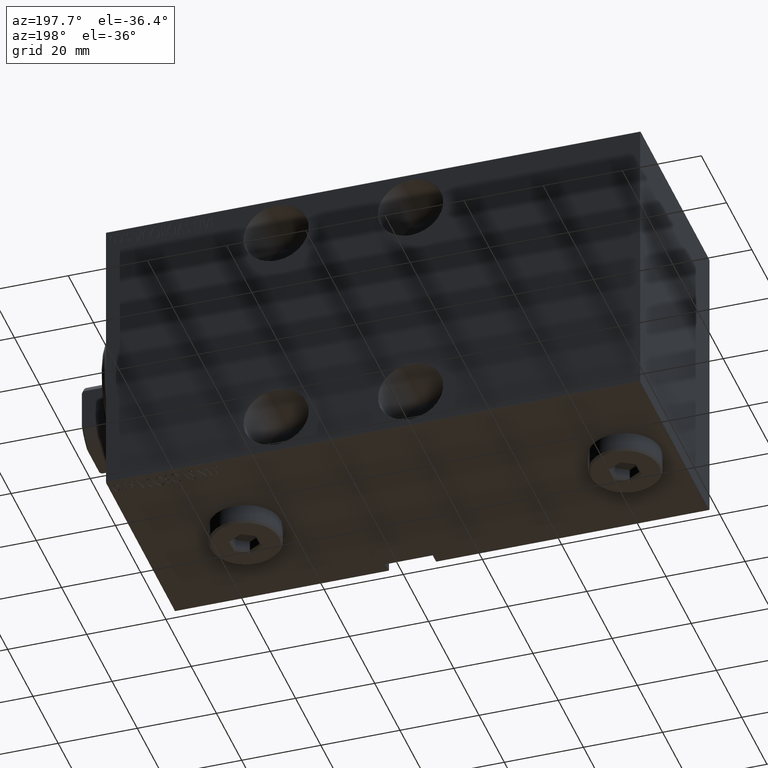
[diagram: clean part render]
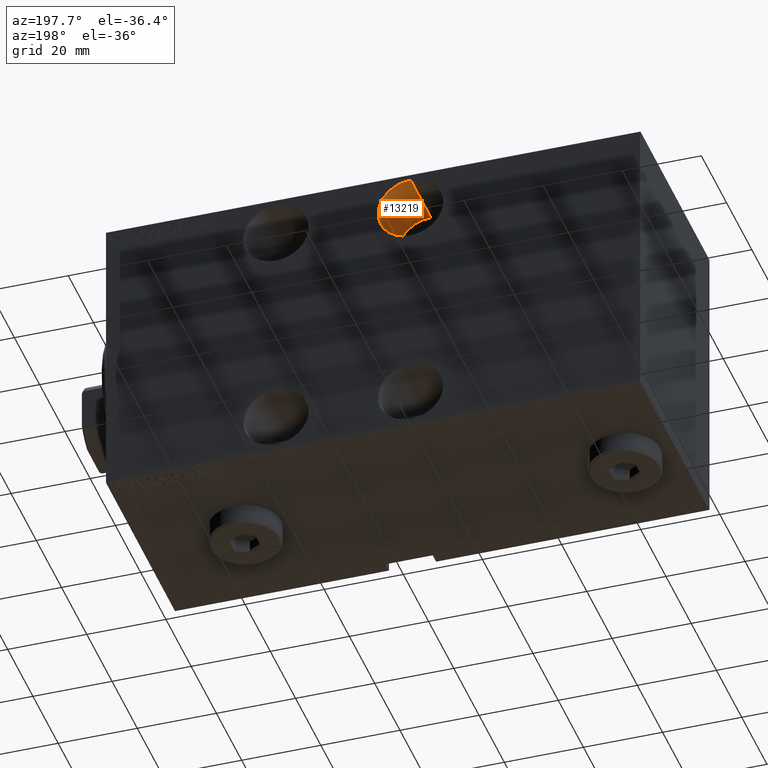
[diagram: same view with one face highlighted and labeled with its STEP entity id]
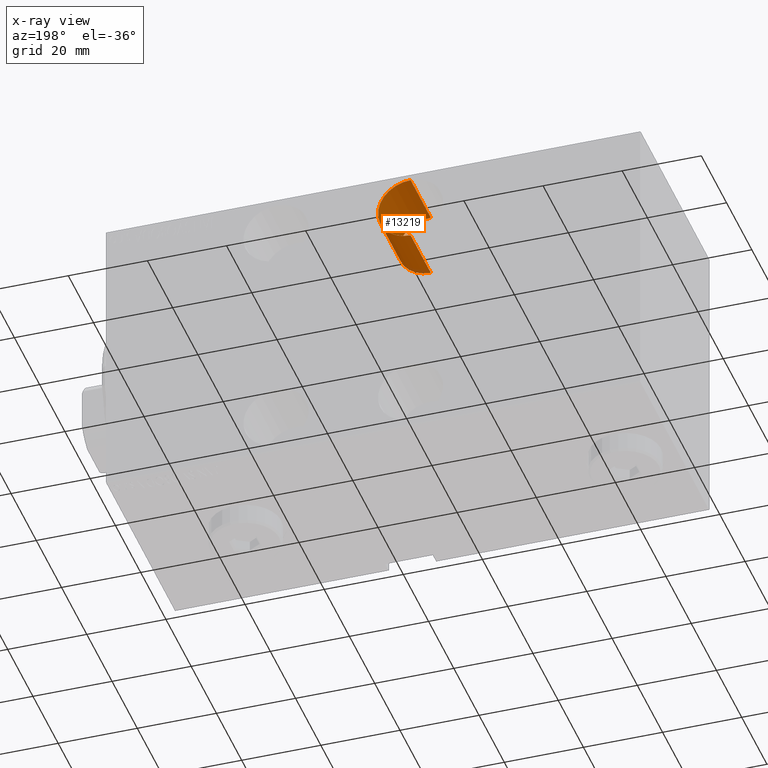
[diagram: x-ray of the same camera — body ghosted, the highlighted face saturated]
A machine part, auxiliary view. The second image highlights one B-rep face of the part: STEP entity #13219.
The next image is the same camera in x-ray: the body ghosted, the highlighted face saturated — about 3% of this face is hidden behind the body in this view.
In plain terms, the highlighted cylindrical surface (edge-blend (fillet) strip) has radius 8.25 mm, axis along (-0, 1, 0).
Its self-contained STEP definition (entity closure, byte-faithful):
#1298 = CIRCLE ( 'NONE', #16351, 8.250000000000010658 ) ;
#2043 = EDGE_CURVE ( 'NONE', #23564, #24825, #15850, .T. ) ;
#4665 = FACE_OUTER_BOUND ( 'NONE', #40252, .T. ) ;
#5278 = ORIENTED_EDGE ( 'NONE', *, *, #12430, .F. ) ;
#5964 = CARTESIAN_POINT ( 'NONE',  ( 77.00000000000001421, -11.49999999999999645, 19.24999999999998934 ) ) ;
#6204 = ORIENTED_EDGE ( 'NONE', *, *, #42244, .T. ) ;
#7251 = CARTESIAN_POINT ( 'NONE',  ( 77.00000000000001421, -27.49999999999999645, 19.24999999999998934 ) ) ;
#12430 = EDGE_CURVE ( 'NONE', #29420, #23564, #1298, .T. ) ;
#12495 = DIRECTION ( 'NONE',  ( 0.000000000000000000, -1.000000000000000000, 0.000000000000000000 ) ) ;
#13219 = ADVANCED_FACE ( 'NONE', ( #4665 ), #27780, .F. ) ;
#15850 = LINE ( 'NONE', #42972, #39794 ) ;
#16351 = AXIS2_PLACEMENT_3D ( 'NONE', #39352, #32835, #25872 ) ;
#17716 = CARTESIAN_POINT ( 'NONE',  ( 77.00000000000001421, -11.49999999999999645, 27.50000000000000000 ) ) ;
#21706 = DIRECTION ( 'NONE',  ( 0.000000000000000000, 0.000000000000000000, -1.000000000000000000 ) ) ;
#22768 = VECTOR ( 'NONE', #35912, 1000.000000000000000 ) ;
#23564 = VERTEX_POINT ( 'NONE', #5964 ) ;
#24825 = VERTEX_POINT ( 'NONE', #7251 ) ;
#24944 = LINE ( 'NONE', #35263, #22768 ) ;
#24986 = CARTESIAN_POINT ( 'NONE',  ( 77.00000000000001421, -27.49999999999999645, 35.75000000000001421 ) ) ;
#25872 = DIRECTION ( 'NONE',  ( 0.000000000000000000, 0.000000000000000000, -1.000000000000000000 ) ) ;
#27506 = AXIS2_PLACEMENT_3D ( 'NONE', #42988, #12495, #43870 ) ;
#27780 = CYLINDRICAL_SURFACE ( 'NONE', #30624, 8.250000000000010658 ) ;
#28581 = EDGE_CURVE ( 'NONE', #41006, #24825, #36826, .T. ) ;
#29284 = DIRECTION ( 'NONE',  ( -0.000000000000000000, -1.000000000000000000, -0.000000000000000000 ) ) ;
#29420 = VERTEX_POINT ( 'NONE', #43874 ) ;
#30621 = ORIENTED_EDGE ( 'NONE', *, *, #28581, .T. ) ;
#30624 = AXIS2_PLACEMENT_3D ( 'NONE', #17716, #38555, #21706 ) ;
#32835 = DIRECTION ( 'NONE',  ( 0.000000000000000000, -1.000000000000000000, 0.000000000000000000 ) ) ;
#33786 = ORIENTED_EDGE ( 'NONE', *, *, #2043, .F. ) ;
#35263 = CARTESIAN_POINT ( 'NONE',  ( 77.00000000000001421, -11.49999999999999645, 35.75000000000001421 ) ) ;
#35912 = DIRECTION ( 'NONE',  ( -0.000000000000000000, -1.000000000000000000, -0.000000000000000000 ) ) ;
#36826 = CIRCLE ( 'NONE', #27506, 8.250000000000010658 ) ;
#38555 = DIRECTION ( 'NONE',  ( -0.000000000000000000, -1.000000000000000000, -0.000000000000000000 ) ) ;
#39352 = CARTESIAN_POINT ( 'NONE',  ( 77.00000000000001421, -11.49999999999999645, 27.50000000000000000 ) ) ;
#39794 = VECTOR ( 'NONE', #29284, 1000.000000000000000 ) ;
#40252 = EDGE_LOOP ( 'NONE', ( #5278, #6204, #30621, #33786 ) ) ;
#41006 = VERTEX_POINT ( 'NONE', #24986 ) ;
#42244 = EDGE_CURVE ( 'NONE', #29420, #41006, #24944, .T. ) ;
#42972 = CARTESIAN_POINT ( 'NONE',  ( 77.00000000000001421, -11.49999999999999645, 19.24999999999998934 ) ) ;
#42988 = CARTESIAN_POINT ( 'NONE',  ( 77.00000000000001421, -27.49999999999999645, 27.50000000000000000 ) ) ;
#43870 = DIRECTION ( 'NONE',  ( 0.000000000000000000, 0.000000000000000000, -1.000000000000000000 ) ) ;
#43874 = CARTESIAN_POINT ( 'NONE',  ( 77.00000000000001421, -11.49999999999999645, 35.75000000000001421 ) ) ;